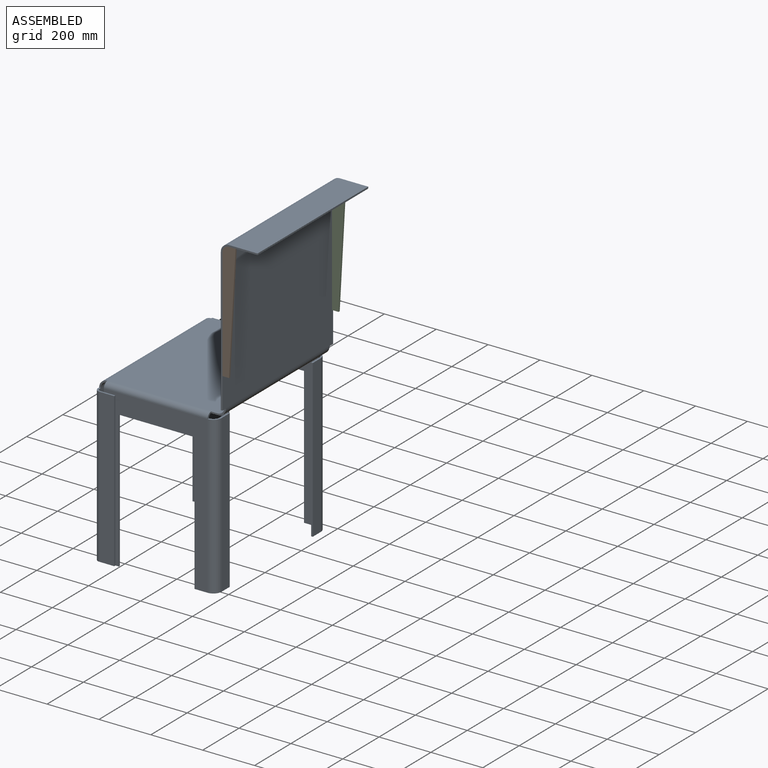
[diagram: assembled view]
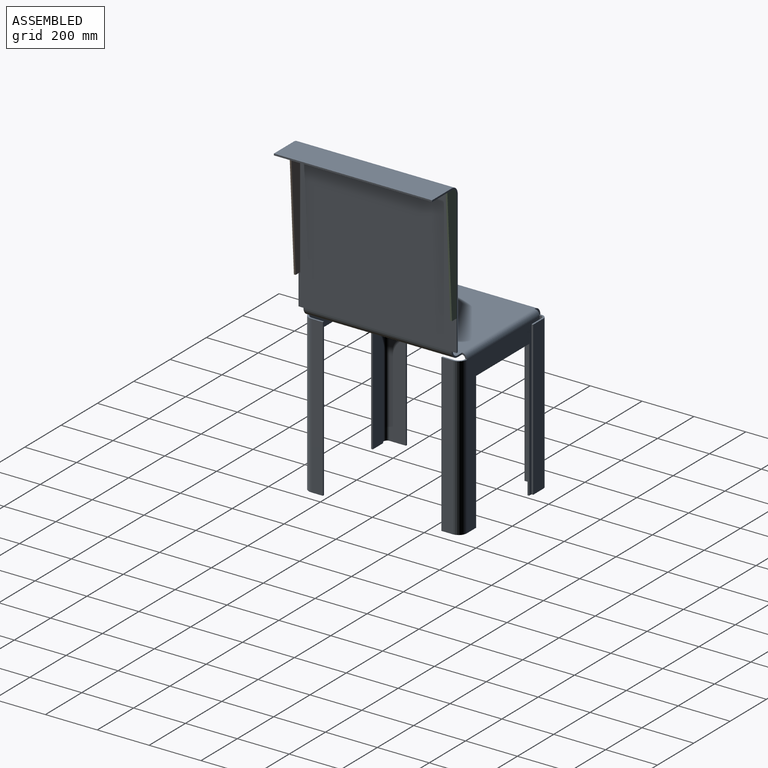
[diagram: assembled view, second angle]
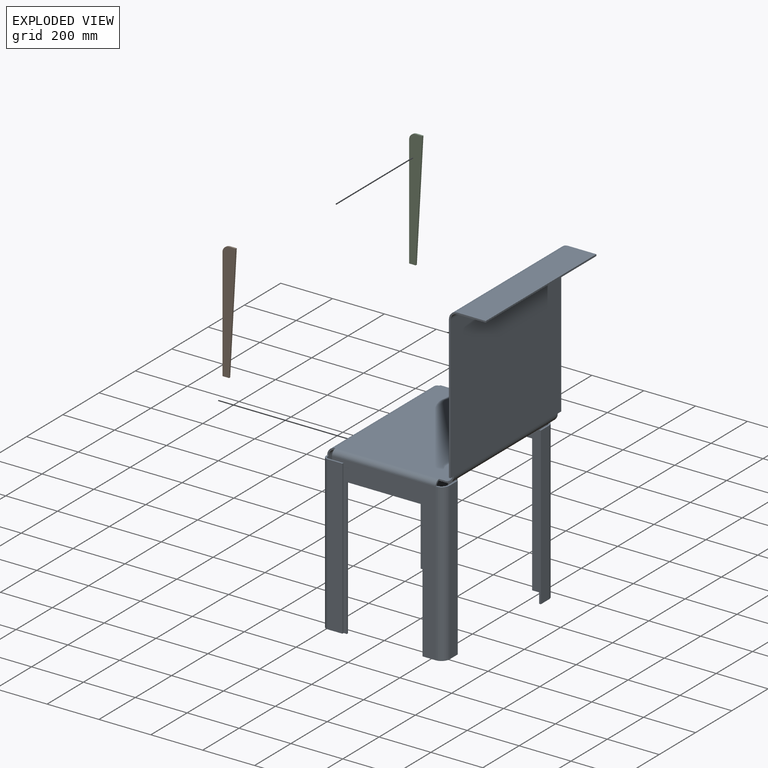
[diagram: exploded view]
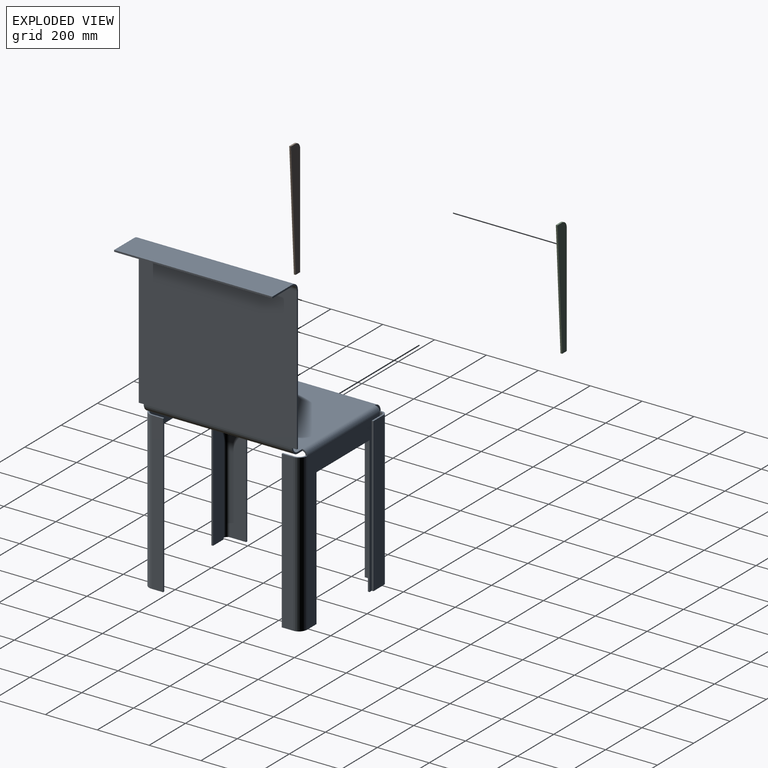
[diagram: exploded view, second angle]
ASSEMBLY  parts=3 mates=6
PART A: 98 faces, bbox 624.5x622.3x1234.1 mm
  f0: plane 25.4x6.35mm, normal (0,1,0), area 161.3mm2, adj f2,f3,f36,f90
  f1: plane 25.4x6.35mm, normal (0,-1,0), area 161.3mm2, adj f2,f3,f65,f91
  f2: plane 571.5x425.45mm, normal (0,0,1), area 243144.7mm2, adj f0,f1,f37,f67,f93,f96
  f3: plane 571.5x425.45mm, normal (0,0,-1), area 243144.7mm2, adj f0,f1,f38,f68,f92,f97
  f4: plane 6.35x6.35mm, normal (0,0,1), area 40.3mm2, adj f11,f12,f69,f95
  f5: plane 6.35x6.35mm, normal (0,0,1), area 40.3mm2, adj f11,f12,f40,f94
  f6: plane 457.2x6.35mm, normal (0,0,-1), area 2903.2mm2, adj f7,f10,f11,f12
  f7: plane 516.52x6.35mm, normal (0,1,0), area 3279.9mm2, adj f6,f8,f11,f12
  f8: plane 63.5x6.35mm, normal (0,0,-1), area 403.2mm2, adj f7,f11,f12,f70
  f9: plane 63.5x6.35mm, normal (0,0,-1), area 403.2mm2, adj f10,f11,f12,f39
  f10: plane 516.52x6.35mm, normal (0,-1,0), area 3279.9mm2, adj f6,f9,f11,f12
  f11: plane 592.72x584.2mm, normal (-1,0,0), area 110113.7mm2, adj f4,f5,f6,f7,f8,f9,f10,f41
  f12: plane 592.72x584.2mm, normal (1,0,0), area 110113.7mm2, adj f4,f5,f6,f7,f8,f9,f10,f42
  f13: plane 57.15x6.35mm, normal (0,0,-1), area 362.9mm2, adj f15,f16,f17,f18,f39
  f14: plane 57.15x6.35mm, normal (0,0,1), area 362.9mm2, adj f15,f16,f17,f24,f40
  f15: plane 592.72x6.35mm, normal (1,0,0), area 3763.8mm2, adj f13,f14,f16,f24
  f16: plane 592.72x57.15mm, normal (0,1,0), area 33873.8mm2, adj f13,f14,f15,f41
  f17: plane 592.72x12.7mm, normal (0,-1,0), area 7527.5mm2, adj f13,f14,f19,f42
  f18: plane 57.15x6.35mm, normal (0,0,-1), area 362.9mm2, adj f13,f19,f23,f24,f25
  f19: plane 605.42x6.35mm, normal (-1,0,0), area 3844.4mm2, adj f17,f18,f24,f25,f35
  f20: plane 50.8x6.35mm, normal (0,0,-1), area 322.6mm2, adj f21,f24,f25,f32
  f21: plane 529.22x6.35mm, normal (-1,0,0), area 3360.5mm2, adj f20,f22,f24,f25
  f22: plane 292.1x6.35mm, normal (0,0,-1), area 1854.8mm2, adj f21,f23,f24,f25
  f23: plane 529.22x6.35mm, normal (1,0,0), area 3360.5mm2, adj f18,f22,f24,f25
  f24: plane 605.42x400.05mm, normal (0,1,0), area 61266.5mm2, adj f14,f15,f18,f19,f20,f21,f22,f23
  f25: plane 605.42x400.05mm, normal (0,-1,0), area 87612.8mm2, adj f18,f19,f20,f21,f22,f23,f34,f38
  f26: plane 44.45x6.35mm, normal (0,0,-1), area 282.3mm2, adj f28,f29,f30,f32
  f27: plane 44.45x6.35mm, normal (0,0,1), area 282.3mm2, adj f28,f29,f30,f31
  f28: plane 605.42x6.35mm, normal (0,-1,0), area 3844.4mm2, adj f26,f27,f29,f30
  f29: plane 605.42x44.45mm, normal (1,0,0), area 26910.8mm2, adj f26,f27,f28,f33
  f30: plane 605.42x44.45mm, normal (-1,0,0), area 26910.8mm2, adj f26,f27,f28,f34
  f31: plane 31.75x31.75mm, normal (0,0,1), area 285mm2, adj f27,f33,f34,f36
  f32: plane 31.75x31.75mm, normal (0,0,-1), area 285mm2, adj f20,f26,f33,f34
  f33: cylinder r=31.75mm len=605.42mm, axis (0,0,1), area 30193.8mm2, adj f24,f29,f31,f32
  f34: cylinder r=25.4mm len=605.42mm, axis (0,0,1), area 24155.1mm2, adj f25,f30,f31,f32
  f35: plane 19.05x19.05mm, normal (-1,0,0), area 158.3mm2, adj f19,f37,f38,f94
  f36: plane 19.05x19.05mm, normal (1,0,0), area 158.3mm2, adj f0,f31,f37,f38
  f37: cylinder r=19.05mm len=400.05mm, axis (-1,0,0), area 11971mm2, adj f2,f24,f35,f36
  f38: cylinder r=12.7mm len=400.05mm, axis (-1,0,0), area 7980.6mm2, adj f3,f25,f35,f36
  f39: plane 19.05x19.05mm, normal (0,0,-1), area 158.3mm2, adj f9,f13,f41,f42
  f40: plane 19.05x19.05mm, normal (0,0,1), area 158.3mm2, adj f5,f14,f41,f42
  f41: cylinder r=19.05mm len=592.72mm, axis (0,0,-1), area 17736.3mm2, adj f11,f16,f39,f40
  f42: cylinder r=12.7mm len=592.72mm, axis (0,0,-1), area 11824.2mm2, adj f12,f17,f39,f40
  f43: plane 57.15x6.35mm, normal (0,0,1), area 362.9mm2, adj f45,f46,f47,f54,f69
  f44: plane 57.15x6.35mm, normal (0,0,-1), area 362.9mm2, adj f45,f46,f47,f50,f70
  f45: plane 592.72x6.35mm, normal (1,0,0), area 3763.8mm2, adj f43,f44,f46,f54
  f46: plane 592.72x57.15mm, normal (0,-1,0), area 33873.8mm2, adj f43,f44,f45,f71
  f47: plane 592.72x12.7mm, normal (0,1,0), area 7527.5mm2, adj f43,f44,f49,f72
  f48: plane 50.8x6.35mm, normal (0,0,-1), area 322.6mm2, adj f53,f54,f55,f62
  f49: plane 605.42x6.35mm, normal (-1,0,0), area 3844.4mm2, adj f47,f50,f54,f55,f66
  f50: plane 57.15x6.35mm, normal (0,0,-1), area 362.9mm2, adj f44,f49,f51,f54,f55
  f51: plane 529.22x6.35mm, normal (1,0,0), area 3360.5mm2, adj f50,f52,f54,f55
  f52: plane 292.1x6.35mm, normal (0,0,-1), area 1854.8mm2, adj f51,f53,f54,f55
  f53: plane 529.22x6.35mm, normal (-1,0,0), area 3360.5mm2, adj f48,f52,f54,f55
  f54: plane 605.42x400.05mm, normal (0,-1,0), area 61266.5mm2, adj f43,f45,f48,f49,f50,f51,f52,f53
  f55: plane 605.42x400.05mm, normal (0,1,0), area 87612.8mm2, adj f48,f49,f50,f51,f52,f53,f64,f68
  f56: plane 44.45x6.35mm, normal (0,0,1), area 282.3mm2, adj f58,f59,f60,f61
  f57: plane 44.45x6.35mm, normal (0,0,-1), area 282.3mm2, adj f58,f59,f60,f62
  f58: plane 605.42x6.35mm, normal (0,1,0), area 3844.4mm2, adj f56,f57,f59,f60
  f59: plane 605.42x44.45mm, normal (1,0,0), area 26910.8mm2, adj f56,f57,f58,f63
  f60: plane 605.42x44.45mm, normal (-1,0,0), area 26910.8mm2, adj f56,f57,f58,f64
  f61: plane 31.75x31.75mm, normal (0,0,1), area 285mm2, adj f56,f63,f64,f65
  f62: plane 31.75x31.75mm, normal (0,0,-1), area 285mm2, adj f48,f57,f63,f64
  f63: cylinder r=31.75mm len=605.42mm, axis (0,0,1), area 30193.8mm2, adj f54,f59,f61,f62
  f64: cylinder r=25.4mm len=605.42mm, axis (0,0,1), area 24155.1mm2, adj f55,f60,f61,f62
  f65: plane 19.05x19.05mm, normal (1,0,0), area 158.3mm2, adj f1,f61,f67,f68
  f66: plane 19.05x19.05mm, normal (-1,0,0), area 158.3mm2, adj f49,f67,f68,f95
  f67: cylinder r=19.05mm len=400.05mm, axis (1,0,0), area 11971mm2, adj f2,f54,f65,f66
  f68: cylinder r=12.7mm len=400.05mm, axis (1,0,0), area 7980.6mm2, adj f3,f55,f65,f66
  f69: plane 19.05x19.05mm, normal (0,0,1), area 158.3mm2, adj f4,f43,f71,f72
  f70: plane 19.05x19.05mm, normal (0,0,-1), area 158.3mm2, adj f8,f44,f71,f72
  f71: cylinder r=19.05mm len=592.72mm, axis (0,0,1), area 17736.3mm2, adj f11,f46,f69,f70
  f72: cylinder r=12.7mm len=592.72mm, axis (0,0,1), area 11824.2mm2, adj f12,f47,f69,f70
  f73: plane 110.12x6.35mm, normal (0,-1,0), area 699.2mm2, adj f74,f76,f77,f87
  f74: plane 609.6x6.35mm, normal (1,0,0), area 3871mm2, adj f73,f75,f76,f77
  f75: plane 110.12x6.35mm, normal (0,1,0), area 699.2mm2, adj f74,f76,f77,f86
  f76: plane 609.6x110.12mm, normal (0,0,1), area 67127.4mm2, adj f73,f74,f75,f88
  f77: plane 609.6x110.12mm, normal (0,0,-1), area 67127.4mm2, adj f73,f74,f75,f89
  f78: plane 15.88x6.35mm, normal (0,0,-1), area 100.8mm2, adj f80,f84,f85,f91
  f79: plane 15.88x6.35mm, normal (0,0,-1), area 100.8mm2, adj f83,f84,f85,f90
  f80: plane 6.35x3.18mm, normal (0,0,-1), area 20.2mm2, adj f78,f81,f84,f85
  f81: plane 552.45x6.35mm, normal (0,-1,0), area 3508.1mm2, adj f80,f84,f85,f87
  f82: plane 552.45x6.35mm, normal (0,1,0), area 3508.1mm2, adj f83,f84,f85,f86
  f83: plane 6.35x3.18mm, normal (0,0,-1), area 20.2mm2, adj f79,f82,f84,f85
  f84: plane 609.6x552.45mm, normal (-1,0,0), area 336773.5mm2, adj f78,f79,f80,f81,f82,f83,f88,f93
  f85: plane 609.6x552.45mm, normal (1,0,0), area 336773.5mm2, adj f78,f79,f80,f81,f82,f83,f89,f92
  f86: plane 31.75x31.75mm, normal (0,1,0), area 285mm2, adj f75,f82,f88,f89
  f87: plane 31.75x31.75mm, normal (0,-1,0), area 285mm2, adj f73,f81,f88,f89
  f88: cylinder r=31.75mm len=609.6mm, axis (0,1,0), area 30402.4mm2, adj f76,f84,f86,f87
  f89: cylinder r=25.4mm len=609.6mm, axis (0,1,0), area 24322mm2, adj f77,f85,f86,f87
  f90: plane 31.75x31.75mm, normal (0,1,0), area 285mm2, adj f0,f79,f92,f93
  f91: plane 31.75x31.75mm, normal (0,-1,0), area 285mm2, adj f1,f78,f92,f93
  f92: cylinder r=31.75mm len=571.5mm, axis (0,1,0), area 28502.3mm2, adj f3,f85,f90,f91
  f93: cylinder r=25.4mm len=571.5mm, axis (0,1,0), area 22801.8mm2, adj f2,f84,f90,f91
  f94: plane 31.75x31.75mm, normal (0,1,0), area 285mm2, adj f5,f35,f96,f97
  f95: plane 31.75x31.75mm, normal (0,-1,0), area 285mm2, adj f4,f66,f96,f97
  f96: cylinder r=31.75mm len=571.5mm, axis (0,1,0), area 28502.3mm2, adj f2,f11,f94,f95
  f97: cylinder r=25.4mm len=571.5mm, axis (0,1,0), area 22801.8mm2, adj f3,f12,f94,f95
PART B: 7 faces, bbox 50.8x6.4x457.2 mm
  f0: plane 25.4x6.35mm, normal (0,0,1), area 161.3mm2, adj f1,f4,f5,f6
  f1: cylinder r=25.4mm len=25.4mm, axis (0,1,0), area 253.4mm2, adj f0,f2,f5,f6
  f2: plane 431.8x6.35mm, normal (-1,0,0), area 2741.9mm2, adj f1,f3,f5,f6
  f3: plane 25.4x6.35mm, normal (0,0,-1), area 161.3mm2, adj f2,f4,f5,f6
  f4: plane 457.2x25.4mm, normal (1,0,-0.06), area 2907.7mm2, adj f0,f3,f5,f6
  f5: plane 457.2x50.8mm, normal (0,-1,0), area 17280.9mm2, adj f0,f1,f2,f3,f4
  f6: plane 457.2x50.8mm, normal (0,1,0), area 17280.9mm2, adj f0,f1,f2,f3,f4
PART C: same geometry as B
PLACE A t=(-240.94,541.75,-744.99)mm
PLACE B t=(-376.46,-61.5,-584.08)mm
PLACE C t=(-376.46,541.75,-584.08)mm
MATE planar A.f85 <-> B.f2  axis (1,0,0) through (-376.46,-67.85,-152.28)mm
MATE planar B.f1 <-> A.f73  axis (0,-1,0) through (-351.06,-67.85,-152.28)mm
MATE planar C.f6 <-> A.f75  axis (0,1,0) through (-376.46,541.75,-368.18)mm
MATE planar A.f77 <-> B.f0  axis (0,0,-1) through (-240.94,-67.85,-126.88)mm
MATE planar C.f2 <-> A.f85  axis (-1,0,0) through (-376.46,538.57,-368.18)mm
MATE planar A.f77 <-> C.f0  axis (0,0,-1) through (-296,236.95,-126.88)mm
